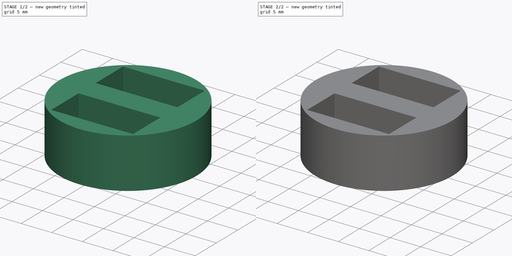
[diagram: build sequence overview — one tinted view per stage of 2, left to right]
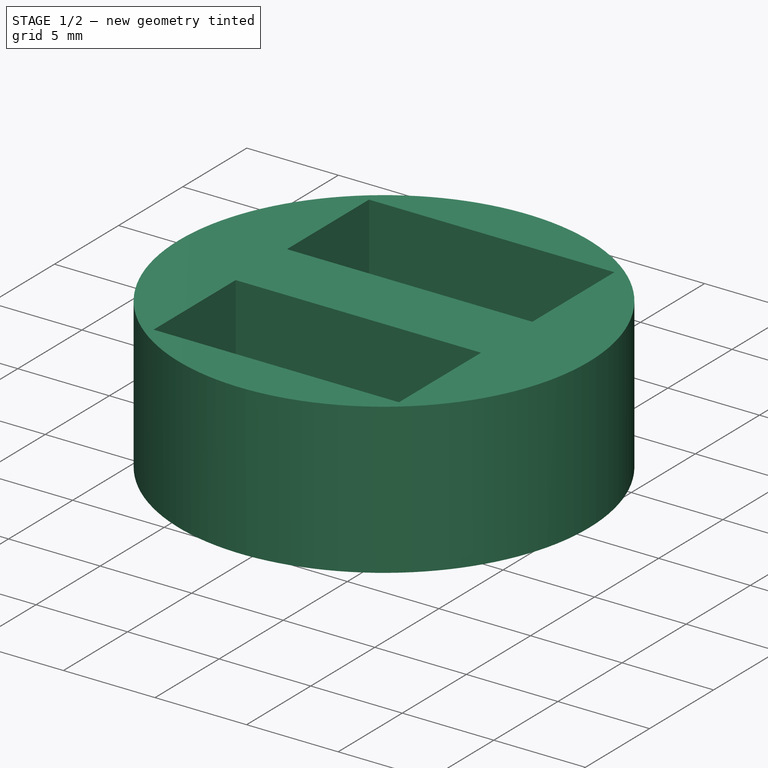
[diagram: stage 1 of 2 — iso view after this stage's code; geometry added in this stage tinted green]
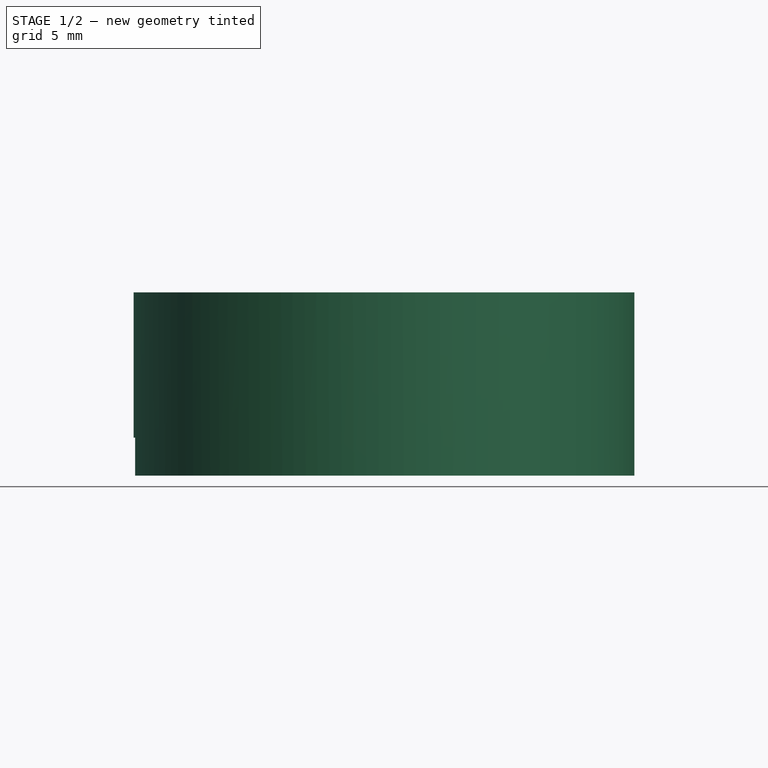
[diagram: stage 1 of 2 — front view after this stage's code; geometry added in this stage tinted green]
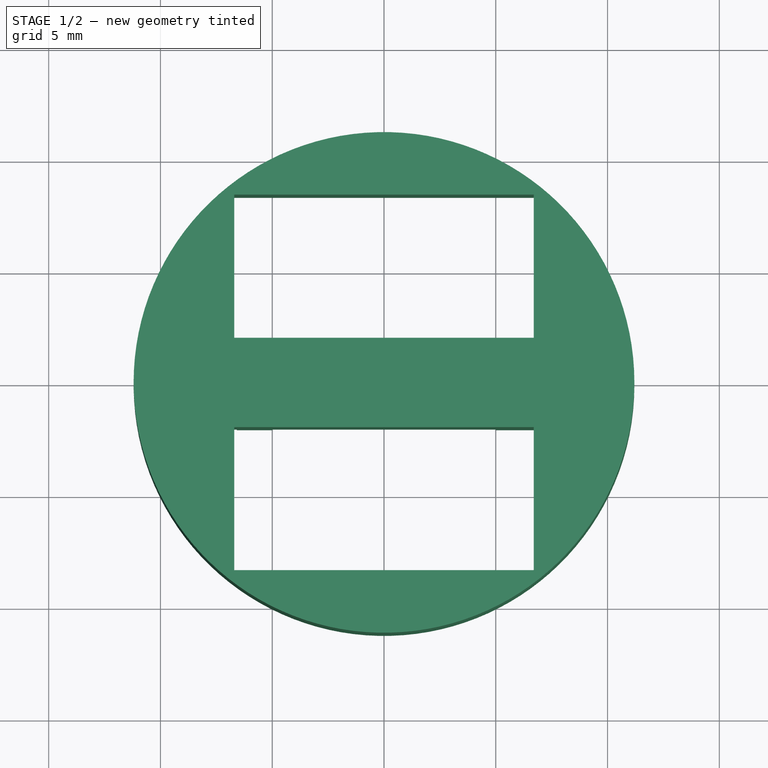
[diagram: stage 1 of 2 — top view after this stage's code; geometry added in this stage tinted green]
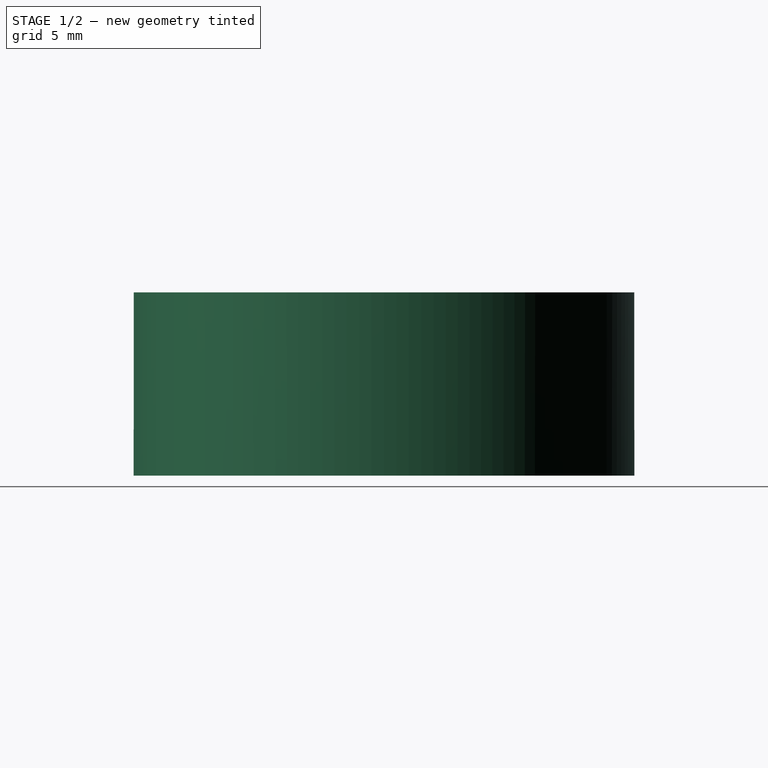
[diagram: stage 1 of 2 — right view after this stage's code; geometry added in this stage tinted green]
FCSTD DOCUMENT  (FreeCAD 0.20R29603 (Git))
Label: prekidac_2x
License: All rights reserved
LicenseURL: http://en.wikipedia.org/wiki/All_rights_reserved
objects: Sketcher::SketchObject×3, PartDesign::Pocket×2, PartDesign::Pad×1, PartDesign::Body×1
note: 10 computed .brp shape members not serialized (recipe doc carries the construction recipe); baked Part::Feature solids carry a one-line shape summary decoded from their .brp

FEATURE [Sketcher::SketchObject] Sketch
  FullyConstrained = true
  MapMode = 5
  Support = -> [XY_Plane]
  sketch-geometry (9):
    g0: LineSegment StartX=-6.7 StartY=8.4 StartZ=0 EndX=6.7 EndY=8.4 EndZ=0
    g1: LineSegment StartX=6.7 StartY=8.4 StartZ=0 EndX=6.7 EndY=2 EndZ=0
    g2: LineSegment StartX=6.7 StartY=2 StartZ=0 EndX=-6.7 EndY=2 EndZ=0
    g3: LineSegment StartX=-6.7 StartY=2 StartZ=0 EndX=-6.7 EndY=8.4 EndZ=0
    g4: LineSegment StartX=-6.7 StartY=-2 StartZ=0 EndX=6.7 EndY=-2 EndZ=0
    g5: LineSegment StartX=6.7 StartY=-2 StartZ=0 EndX=6.7 EndY=-8.4 EndZ=0
    g6: LineSegment StartX=6.7 StartY=-8.4 StartZ=0 EndX=-6.7 EndY=-8.4 EndZ=0
    g7: LineSegment StartX=-6.7 StartY=-8.4 StartZ=0 EndX=-6.7 EndY=-2 EndZ=0
    g8: Circle CenterX=0 CenterY=0 CenterZ=0 NormalX=0 NormalY=0 NormalZ=1 AngleXU=0 Radius=11.2
  constraints (24):
    c: Coincident(g0,g1)
    c: Coincident(g1,g2)
    c: Coincident(g2,g3)
    c: Coincident(g3,g0)
    c: Horizontal(g0)
    c: Vertical(g1)
    c: Vertical(g3)
    c: DistanceX(g2,g2) = 13.4
    c: DistanceY(g1,g1) = 6.4
    c: Symmetric(g2,g1,g-2)
    c: Coincident(g4,g5)
    c: Coincident(g5,g6)
    c: Coincident(g6,g7)
    c: Coincident(g7,g4)
    c: Horizontal(g4)
    c: Vertical(g5)
    c: Vertical(g7)
    c: Symmetric(g6,g5,g-2)
    c: Equal(g6,g2)
    c: Equal(g5,g1)
    c: DistanceY(g4,g-1) = 2
    c: DistanceY(g-1,g1) = 2
    c: Coincident(g8,g-1)
    c: Diameter(g8) = 22.4
FEATURE [PartDesign::Pad] Pad
  Direction = (0,0,1)
  Length = 8.2
  Length2 = 10
  Profile = -> Sketch
  ReferenceAxis = -> Sketch [N_Axis]
  Type = 0
FEATURE [Sketcher::SketchObject] Sketch001
  FullyConstrained = false
  MapMode = 5
  Placement = pos=(0,0,0) rot=(1,0,0;3.14159rad)
  Support = -> [Pad]
  sketch-geometry (12):
    g0: LineSegment StartX=-5 StartY=2.65 StartZ=0 EndX=5 EndY=2.65 EndZ=0
    g1: LineSegment StartX=5 StartY=2.65 StartZ=0 EndX=5 EndY=-2.65 EndZ=0
    g2: LineSegment StartX=5 StartY=-2.65 StartZ=0 EndX=-5 EndY=-2.65 EndZ=0
    g3: LineSegment StartX=-5 StartY=-2.65 StartZ=0 EndX=-5 EndY=2.65 EndZ=0
    g4: LineSegment StartX=-14.2061 StartY=1.2 StartZ=0 EndX=-10.5 EndY=1.2 EndZ=0
    g5: LineSegment StartX=-14.2061 StartY=-1.2 StartZ=0 EndX=-14.2061 EndY=1.2 EndZ=0
    g6: LineSegment StartX=-10.5 StartY=1.2 StartZ=0 EndX=-6.58718 EndY=7.33688 EndZ=0
    g7: LineSegment StartX=-6.58718 StartY=7.33688 StartZ=0 EndX=-6.58718 EndY=2.35331 EndZ=0
    g8: LineSegment StartX=-6.58718 StartY=-2.35331 StartZ=0 EndX=-6.58718 EndY=-7.33688 EndZ=0
    g9: LineSegment StartX=-6.58718 StartY=-7.33688 StartZ=0 EndX=-10.5 EndY=-1.2 EndZ=0
    g10: LineSegment StartX=-10.5 StartY=-1.2 StartZ=0 EndX=-14.2061 EndY=-1.2 EndZ=0
    g11: LineSegment StartX=-6.58718 StartY=2.35331 StartZ=0 EndX=-6.58718 EndY=-2.35331 EndZ=0
  constraints (26):
    c: Coincident(g0,g1)
    c: Coincident(g1,g2)
    c: Coincident(g2,g3)
    c: Coincident(g3,g0)
    c: Horizontal(g0)
    c: Vertical(g3)
    c: Symmetric(g1,g2,g-2)
    c: Symmetric(g0,g1,g-1)
    c: DistanceY(g1,g1) = 5.3
    c: DistanceX(g2,g2) = 10
    c: Coincident(g10,g5)
    c: Coincident(g5,g4)
    c: Horizontal(g4)
    c: Symmetric(g10,g4,g-1)
    c: Coincident(g6,g7)
    c: Vertical(g7)
    c: Vertical(g8)
    c: Coincident(g8,g9)
    c: Equal(g8,g7)
    c: Symmetric(g7,g8,g-1)
    c: Coincident(g4,g6)
    c: Coincident(g10,g9)
    c: Coincident(g11,g7)
    c: Coincident(g11,g8)
    c: DistanceY(g5,g5) = 2.4
    c: Horizontal(g10)
FEATURE [PartDesign::Pocket] Pocket
  BaseFeature = -> Pad
  Direction = (0,0,1)
  Length = 1.7
  Length2 = 5
  Profile = -> Sketch001
  ReferenceAxis = -> Sketch001 [N_Axis]
  Type = 0
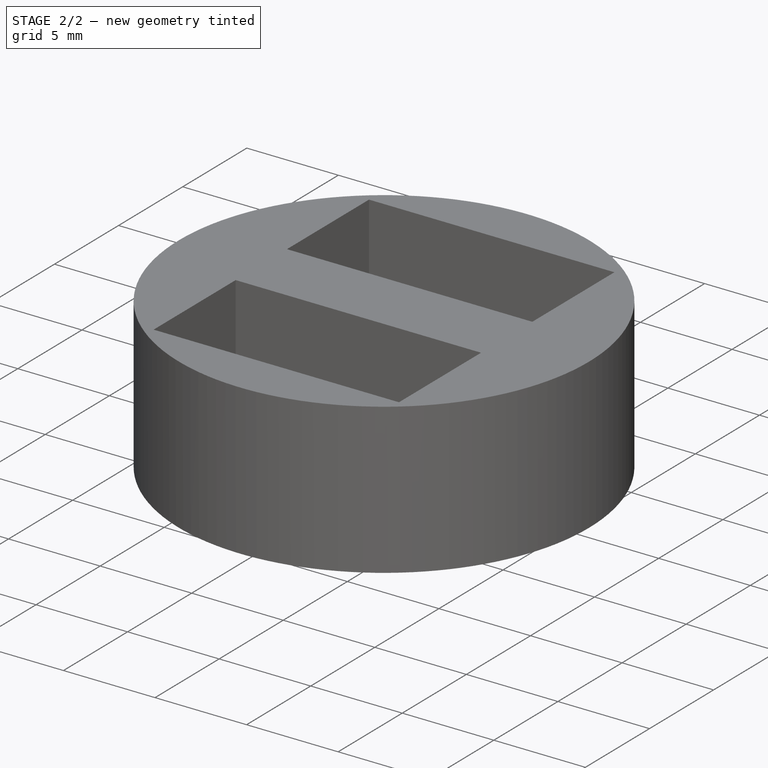
[diagram: stage 2 of 2 — iso view after this stage's code; geometry added in this stage tinted green]
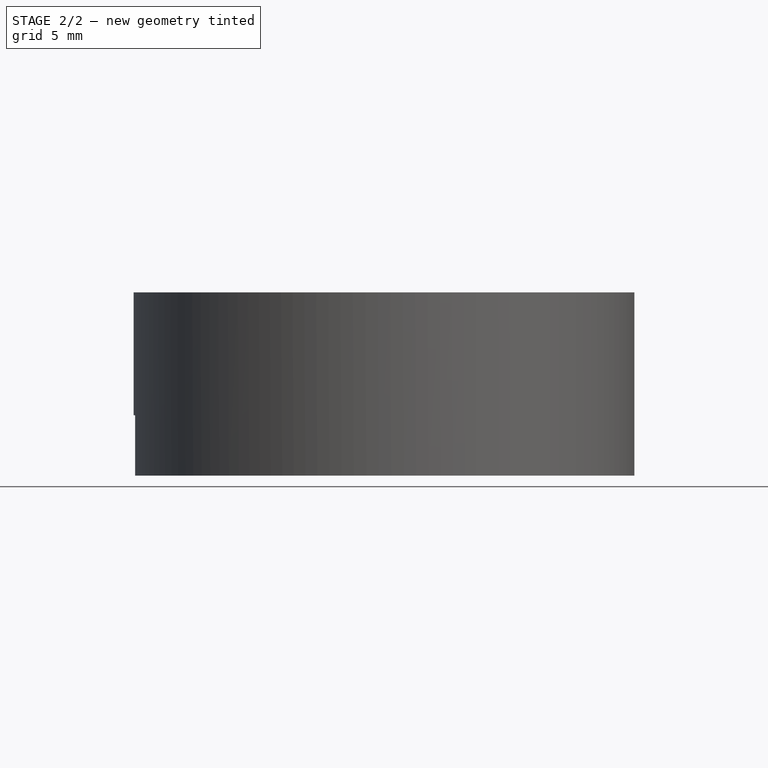
[diagram: stage 2 of 2 — front view after this stage's code; geometry added in this stage tinted green]
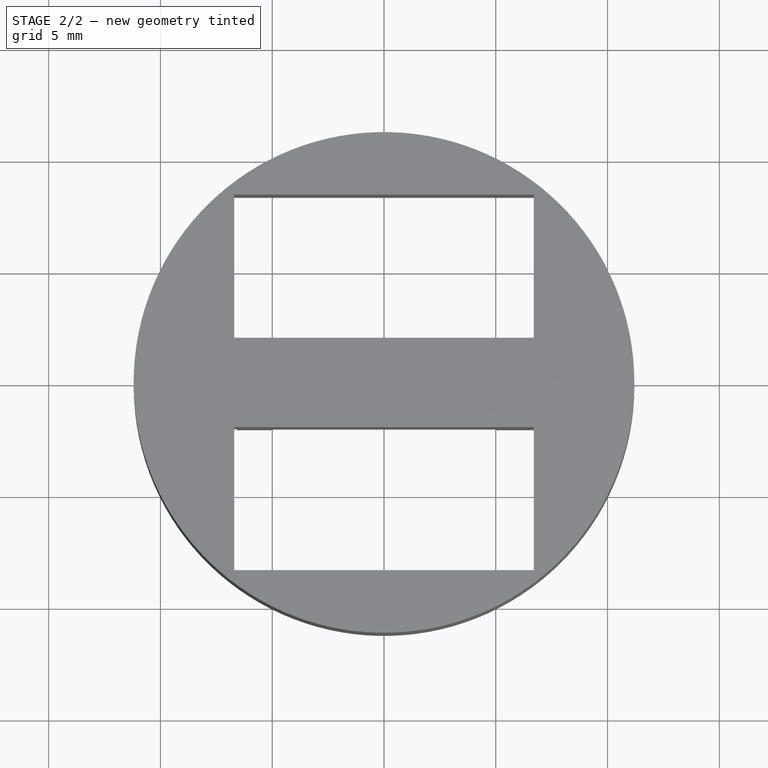
[diagram: stage 2 of 2 — top view after this stage's code; geometry added in this stage tinted green]
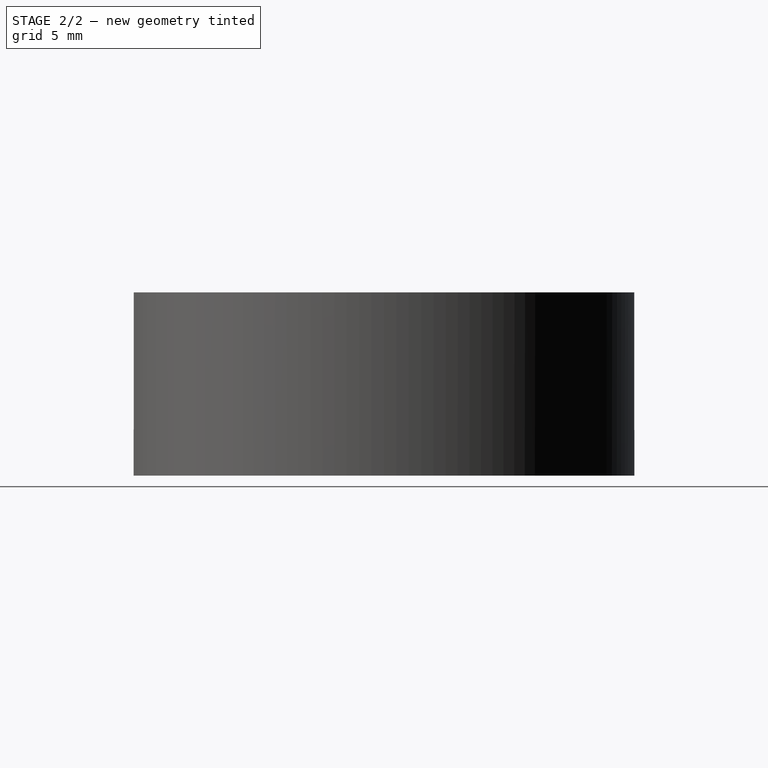
[diagram: stage 2 of 2 — right view after this stage's code; geometry added in this stage tinted green]
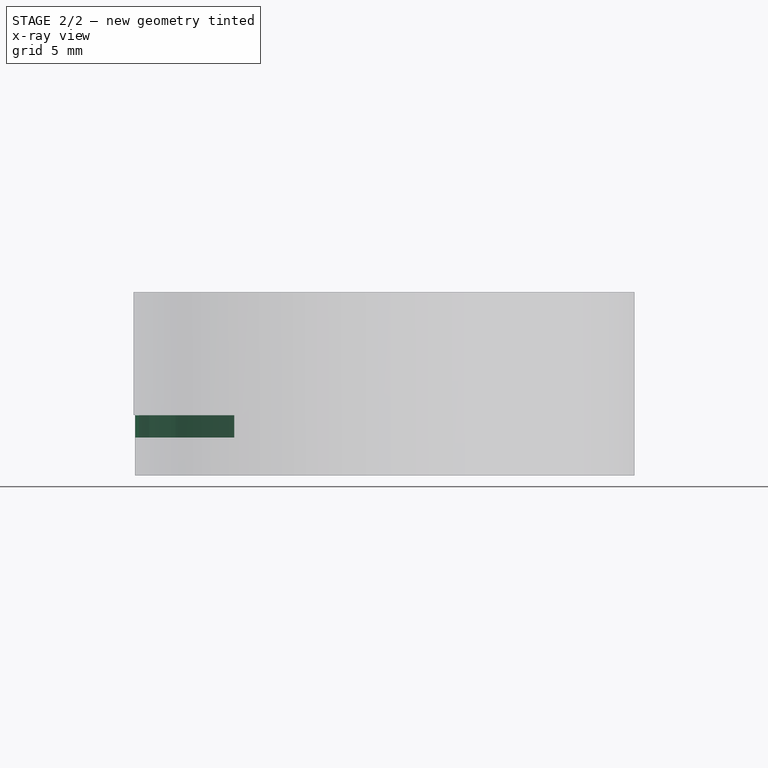
[diagram: stage 2 of 2 — x-ray composite at the front view; earlier geometry ghosted, this stage's added geometry solid]
FEATURE [Sketcher::SketchObject] Sketch002
  FullyConstrained = false
  MapMode = 5
  Placement = pos=(0,0,1.7) rot=(1,0,0;3.14159rad)
  Support = -> [Pocket]
  sketch-geometry (8):
    g0: LineSegment StartX=-12.152 StartY=1.2 StartZ=0 EndX=-12.152 EndY=-1.2 EndZ=0
    g1: LineSegment StartX=-12.152 StartY=-1.2 StartZ=0 EndX=-10.5039 EndY=-1.2 EndZ=0
    g2: LineSegment StartX=-9.33306 StartY=-3.06238 StartZ=0 EndX=-6.58306 EndY=-3.06238 EndZ=0
    g3: LineSegment StartX=-6.58306 StartY=-3.06238 StartZ=0 EndX=-6.58306 EndY=3.06238 EndZ=0
    g4: LineSegment StartX=-6.58306 StartY=3.06238 StartZ=0 EndX=-9.33306 EndY=3.06238 EndZ=0
    g5: LineSegment StartX=-10.5039 StartY=1.2 StartZ=0 EndX=-12.152 EndY=1.2 EndZ=0
    g6: LineSegment StartX=-10.5039 StartY=1.2 StartZ=0 EndX=-9.33306 EndY=3.06238 EndZ=0
    g7: LineSegment StartX=-9.33306 StartY=-3.06238 StartZ=0 EndX=-10.5039 EndY=-1.2 EndZ=0
  constraints (18):
    c: Coincident(g0,g1)
    c: Horizontal(g1)
    c: Horizontal(g2)
    c: Coincident(g2,g3)
    c: Coincident(g3,g4)
    c: Horizontal(g4)
    c: Coincident(g5,g0)
    c: Horizontal(g5)
    c: Symmetric(g0,g0,g-1)
    c: Symmetric(g3,g2,g-1)
    c: DistanceY(g0,g0) = 2.4
    c: DistanceX(g4,g4) = 2.75
    c: Equal(g2,g4)
    c: Coincident(g6,g4)
    c: Coincident(g1,g7)
    c: Coincident(g5,g6)
    c: Equal(g6,g7)
    c: Coincident(g2,g7)
FEATURE [PartDesign::Pocket] Pocket001
  BaseFeature = -> Pocket
  Direction = (0,0,1)
  Length = 1
  Length2 = 5
  Profile = -> Sketch002
  ReferenceAxis = -> Sketch002 [N_Axis]
  Type = 0
FEATURE [PartDesign::Body] Body
  Group = -> [Sketch,Pad,Sketch001,Pocket,Sketch002,Pocket001]
  Origin = -> Origin
  Tip = -> Pocket001
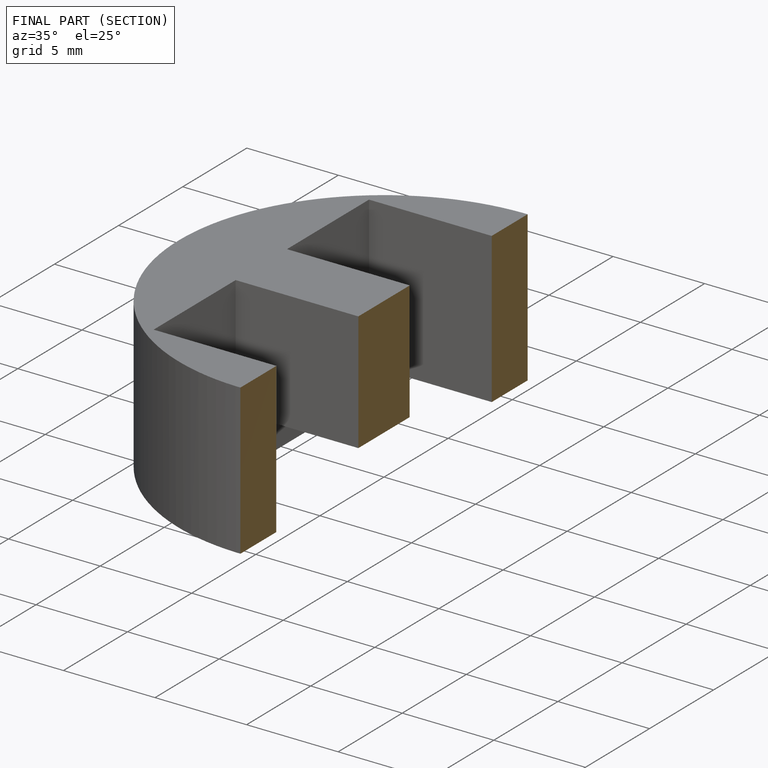
[diagram: finished part — half-section view (interior)]
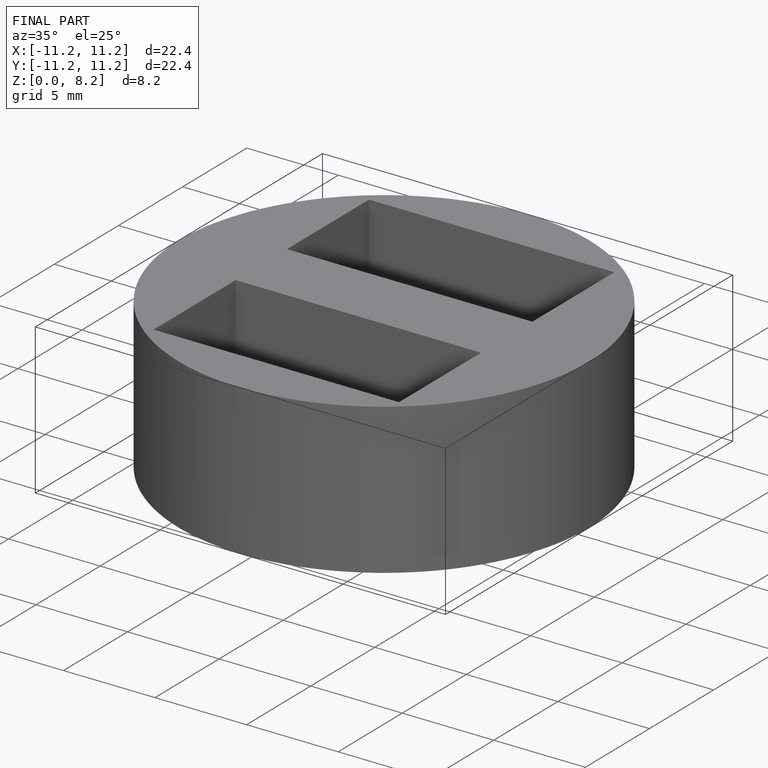
[diagram: finished part — iso view with bounding-box wireframe]
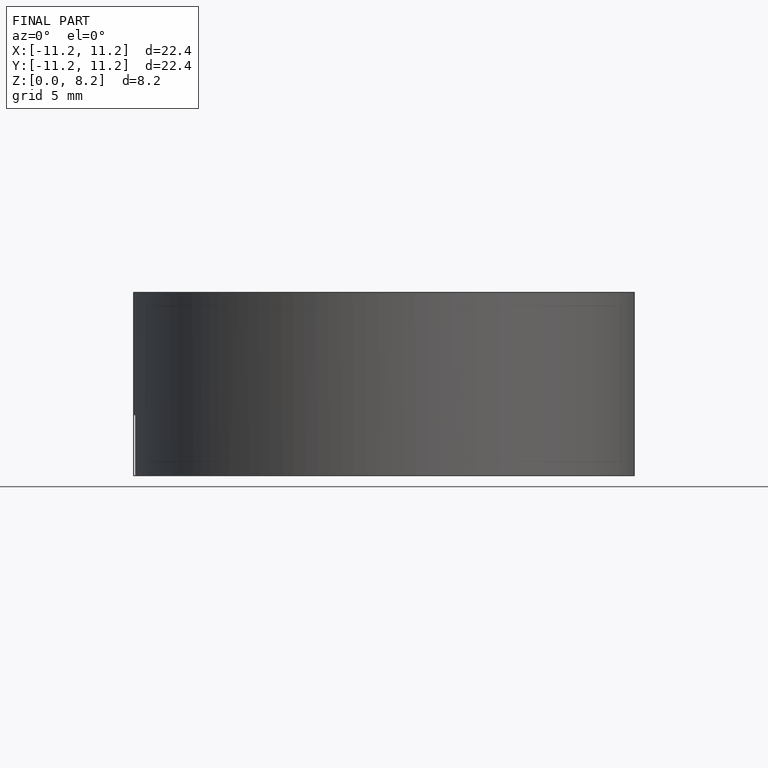
[diagram: finished part — front view with bounding-box wireframe]
